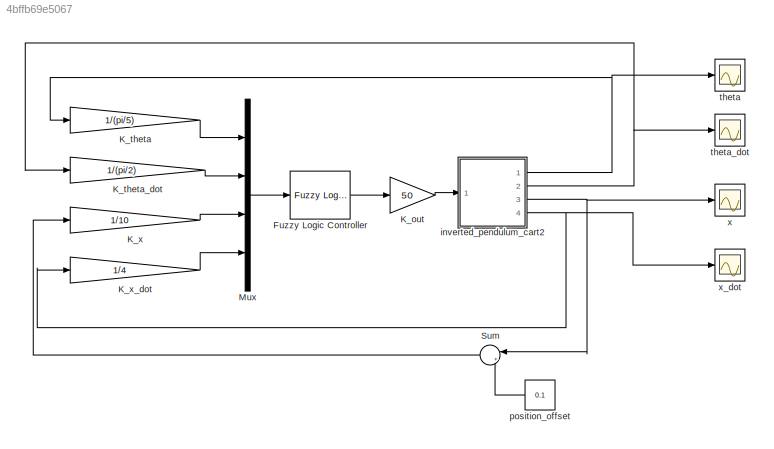
MODEL slx_4bffb69e5067
KIND model
CONFIG AbsTol = auto
CONFIG EnableMultiTasking = on
CONFIG FixedStep = 0.001
CONFIG MaxStep = auto
CONFIG MinStep = auto
CONFIG RelTol = 1e-3
CONFIG SampleTimeConstraint = Unconstrained
CONFIG Solver = VariableStepAuto
CONFIG SolverName = VariableStepAuto
CONFIG StartTime = 0.0
CONFIG StopTime = 200
BLOCK [Reference] Fuzzy Logic Controller  REF=fuzblock/Fuzzy Logic   (lib defined in mdl_858b3b3e7478)
Controller
  Ports = [1, 1]
  SourceBlock = fuzblock/Fuzzy Logic \nController
  SourceType = FIS
BLOCK [Gain] K_out
  Gain = 50
  OutDataTypeStr = Inherit: Inherit via internal rule
  ParamDataTypeStr = Inherit: Inherit via internal rule
  SaturateOnIntegerOverflow = off
BLOCK [Gain] K_theta
  Gain = 1/(pi/5)
  OutDataTypeStr = Inherit: Inherit via internal rule
  ParamDataTypeStr = Inherit: Inherit via internal rule
  SaturateOnIntegerOverflow = off
BLOCK [Gain] K_theta_dot
  Gain = 1/(pi/2)
  OutDataTypeStr = Inherit: Inherit via internal rule
  ParamDataTypeStr = Inherit: Inherit via internal rule
  SaturateOnIntegerOverflow = off
BLOCK [Gain] K_x
  Gain = 1/10
  OutDataTypeStr = Inherit: Inherit via internal rule
  ParamDataTypeStr = Inherit: Inherit via internal rule
  SaturateOnIntegerOverflow = off
BLOCK [Gain] K_x_dot
  Gain = 1/4
  OutDataTypeStr = Inherit: Inherit via internal rule
  ParamDataTypeStr = Inherit: Inherit via internal rule
  SaturateOnIntegerOverflow = off
BLOCK [Mux] Mux
  DisplayOption = bar
  Ports = [4, 1]
BLOCK [Sum] Sum
  IconShape = round
  InputSameDT = off
  Inputs = |+-
  OutDataTypeStr = Inherit: Inherit via internal rule
  Ports = [2, 1]
  SaturateOnIntegerOverflow = off
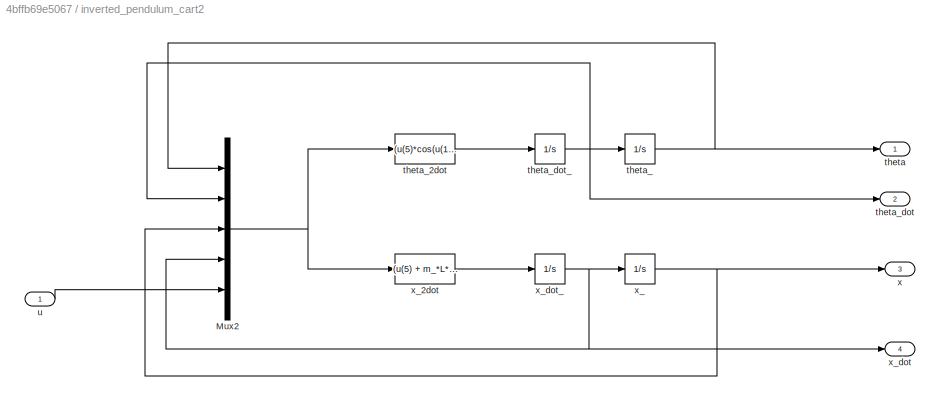
BLOCK [SubSystem] inverted_pendulum_cart2
  Ports = [1, 4]
  RequestExecContextInheritance = off
  Variant = off
BLOCK [Mux] inverted_pendulum_cart2/Mux2
  DisplayOption = bar
  Inputs = 5
  Ports = [5, 1]
BLOCK [Outport] inverted_pendulum_cart2/theta
  IconDisplay = Port number
BLOCK [Integrator] inverted_pendulum_cart2/theta_
  InitialCondition = init_cond(1)
  Ports = [1, 1]
BLOCK [Fcn] inverted_pendulum_cart2/theta_2dot
  Expr = (u(5)*cos(u(1)) - (M + m_)*g*sin(u(1)) + m_*L*cos(u(1))*sin(u(1))*u(2)) / (m_*L*(cos(u(1)))^2 - (M + m_)*L)
BLOCK [Outport] inverted_pendulum_cart2/theta_dot
  IconDisplay = Port number
  Port = 2
BLOCK [Integrator] inverted_pendulum_cart2/theta_dot_
  InitialCondition = init_cond(2)
  Ports = [1, 1]
BLOCK [Inport] inverted_pendulum_cart2/u
  IconDisplay = Port number
BLOCK [Outport] inverted_pendulum_cart2/x
  IconDisplay = Port number
  Port = 3
BLOCK [Integrator] inverted_pendulum_cart2/x_
  InitialCondition = init_cond(3)
  Ports = [1, 1]
BLOCK [Fcn] inverted_pendulum_cart2/x_2dot
  Expr = (u(5) + m_*L*sin(u(1))*u(2)^2 - m_*g*cos(u(1))*sin(u(1))) / (M + m_ - m_*cos(u(1))^2)
BLOCK [Outport] inverted_pendulum_cart2/x_dot
  IconDisplay = Port number
  Port = 4
BLOCK [Integrator] inverted_pendulum_cart2/x_dot_
  InitialCondition = init_cond(4)
  Ports = [1, 1]
BLOCK [Constant] position_offset
  Value = 0.1
BLOCK [Scope] theta
  NumInputPorts = 1
  Ports = [1]
  ScopeSpecificationString = Simulink.scopes.TimeScopeBlockCfg('CurrentConfiguration', extmgr.ConfigurationSet(extmgr.Configuration('Core','General UI',true),extmgr.Configuration('Core','Source UI',true),extmgr.Configuration('Sources','WiredSimulink',true,'DataLoggingLimitDataPoints',true,'DataLoggingSaveFormat','Array','DataLoggingDecimation','1','DataLoggingDecimateData',true),extmgr.Configuration('Visuals','Time Domain',tr...<+1568ch>
BLOCK [Scope] theta_dot
  NumInputPorts = 1
  Ports = [1]
  ScopeSpecificationString = Simulink.scopes.TimeScopeBlockCfg('CurrentConfiguration', extmgr.ConfigurationSet(extmgr.Configuration('Core','General UI',true),extmgr.Configuration('Core','Source UI',true),extmgr.Configuration('Sources','WiredSimulink',true,'DataLoggingVariableName','ScopeData1','DataLoggingLimitDataPoints',true,'DataLoggingSaveFormat','Array','DataLoggingDecimation','1','DataLoggingDecimateData',true),extmgr.C...<+1606ch>
BLOCK [Scope] x
  NumInputPorts = 1
  Ports = [1]
  ScopeSpecificationString = Simulink.scopes.TimeScopeBlockCfg('CurrentConfiguration', extmgr.ConfigurationSet(extmgr.Configuration('Core','General UI',true),extmgr.Configuration('Core','Source UI',true),extmgr.Configuration('Sources','WiredSimulink',true,'DataLoggingVariableName','ScopeData2','DataLoggingLimitDataPoints',true,'DataLoggingSaveFormat','Array','DataLoggingDecimation','1','DataLoggingDecimateData',true),extmgr.C...<+1608ch>
BLOCK [Scope] x_dot
  NumInputPorts = 1
  Ports = [1]
  ScopeSpecificationString = Simulink.scopes.TimeScopeBlockCfg('CurrentConfiguration', extmgr.ConfigurationSet(extmgr.Configuration('Core','General UI',true),extmgr.Configuration('Core','Source UI',true),extmgr.Configuration('Sources','WiredSimulink',true,'DataLoggingVariableName','ScopeData3','DataLoggingLimitDataPoints',true,'DataLoggingSaveFormat','Array','DataLoggingDecimation','1','DataLoggingDecimateData',true),extmgr.C...<+1588ch>
LINE Fuzzy Logic Controller:1 -> K_out:1
LINE K_out:1 -> inverted_pendulum_cart2:1
LINE K_theta:1 -> Mux:1
LINE K_theta_dot:1 -> Mux:2
LINE K_x:1 -> Mux:3
LINE K_x_dot:1 -> Mux:4
LINE Mux:1 -> Fuzzy Logic Controller:1
LINE Sum:1 -> K_x:1
NET inverted_pendulum_cart2/Mux2:1 -> inverted_pendulum_cart2/theta_2dot:1, inverted_pendulum_cart2/x_2dot:1
LINE inverted_pendulum_cart2/theta_2dot:1 -> inverted_pendulum_cart2/theta_dot_:1
NET inverted_pendulum_cart2/theta_:1 -> inverted_pendulum_cart2/Mux2:1, inverted_pendulum_cart2/theta:1
NET inverted_pendulum_cart2/theta_dot_:1 -> inverted_pendulum_cart2/Mux2:2, inverted_pendulum_cart2/theta_:1, inverted_pendulum_cart2/theta_dot:1
LINE inverted_pendulum_cart2/u:1 -> inverted_pendulum_cart2/Mux2:5
LINE inverted_pendulum_cart2/x_2dot:1 -> inverted_pendulum_cart2/x_dot_:1
NET inverted_pendulum_cart2/x_:1 -> inverted_pendulum_cart2/Mux2:3, inverted_pendulum_cart2/x:1
NET inverted_pendulum_cart2/x_dot_:1 -> inverted_pendulum_cart2/Mux2:4, inverted_pendulum_cart2/x_:1, inverted_pendulum_cart2/x_dot:1
NET inverted_pendulum_cart2:1 -> K_theta:1, theta:1
NET inverted_pendulum_cart2:2 -> K_theta_dot:1, theta_dot:1
NET inverted_pendulum_cart2:3 -> Sum:1, x:1
NET inverted_pendulum_cart2:4 -> K_x_dot:1, x_dot:1
LINE position_offset:1 -> Sum:2
note: NET lines group one-source signal fan-out (src -> all destinations, sorted); 1:1 wires keep LINE
